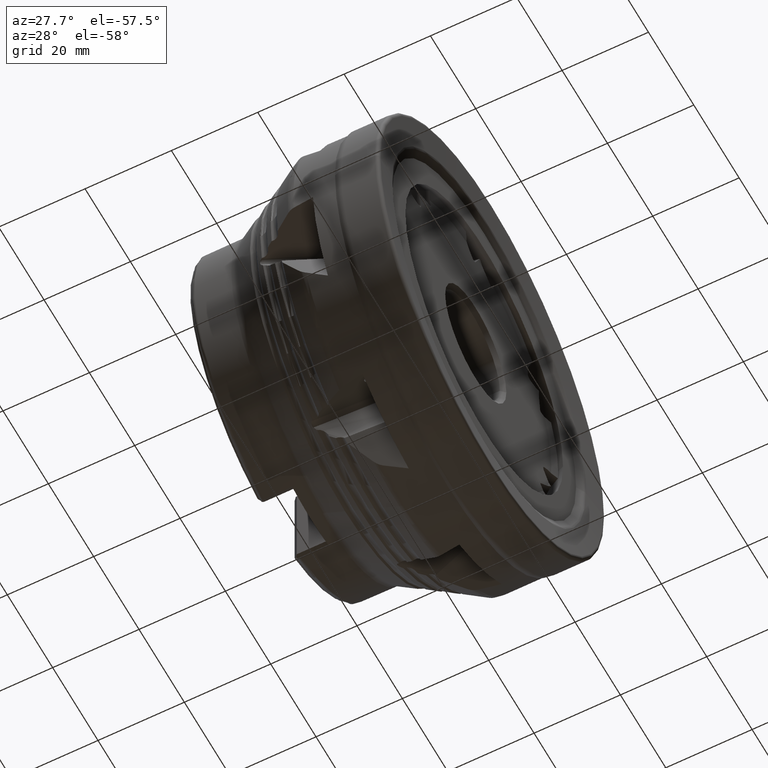
[diagram: clean part render]
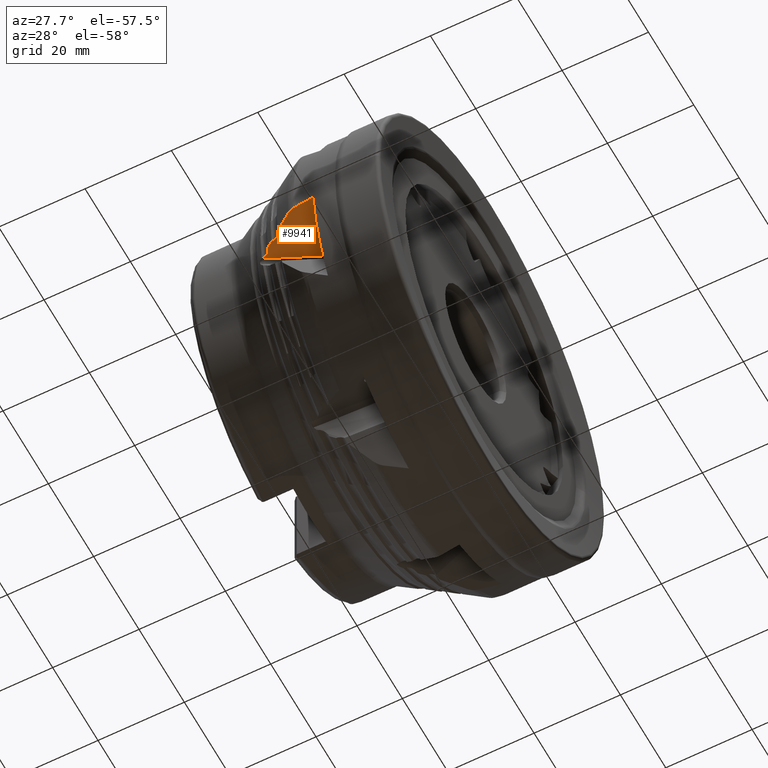
[diagram: same view with one face highlighted and labeled with its STEP entity id]
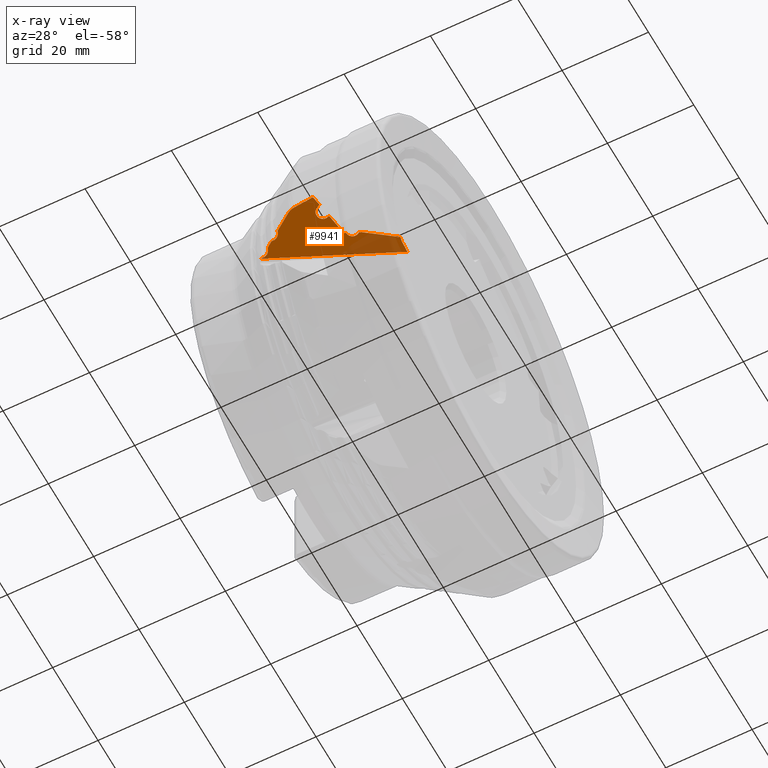
[diagram: x-ray of the same camera — body ghosted, the highlighted face saturated]
A machine part, auxiliary view. The second image highlights one B-rep face of the part: STEP entity #9941.
The next image is the same camera in x-ray: the body ghosted, the highlighted face saturated — about 20% of this face is hidden behind the body in this view.
In plain terms, the highlighted planar face has unit normal (-0.1392, 0.2204, 0.9654).
Its self-contained STEP definition (entity closure, byte-faithful):
#23 = B_SPLINE_CURVE_WITH_KNOTS ( 'NONE', 3,
 ( #2173, #2178, #2179, #2180, #2181, #2182, #2183, #2184, #2185, #2186, #2187, #2188 ),
 .UNSPECIFIED., .F., .F.,
 ( 4, 2, 2, 2, 2, 4 ),
 ( 9.759521454629765600E-007, 0.0005336591846719985300, 0.001066342417198534000, 0.001599025649725069300, 0.001865367265988338100, 0.002131708882251606800 ),
 .UNSPECIFIED. ) ;
#1583 = CIRCLE ( 'NONE', #5654, 1.499999999999990700 ) ;
#1586 = CIRCLE ( 'NONE', #5655, 1.500000000000026200 ) ;
#2173 = CARTESIAN_POINT ( 'NONE',  ( -23.45538848306713600, -46.53457036963099800, -6.311287599031854400 ) ) ;
#2178 = CARTESIAN_POINT ( 'NONE',  ( -23.49182370083072900, -46.36383818214969200, -6.355508429303624100 ) ) ;
#2179 = CARTESIAN_POINT ( 'NONE',  ( -23.55372686292649600, -46.20372986985148600, -6.400975763559364900 ) ) ;
#2180 = CARTESIAN_POINT ( 'NONE',  ( -23.72757998662828900, -45.90439011479648500, -6.494359924427234500 ) ) ;
#2181 = CARTESIAN_POINT ( 'NONE',  ( -23.83710413897812000, -45.77031779809923500, -6.540749521396782600 ) ) ;
#2182 = CARTESIAN_POINT ( 'NONE',  ( -24.09658595447035300, -45.54189465135150500, -6.630291242174431300 ) ) ;
#2183 = CARTESIAN_POINT ( 'NONE',  ( -24.24564957103257300, -45.44899003495536500, -6.672984395775482200 ) ) ;
#2184 = CARTESIAN_POINT ( 'NONE',  ( -24.48763658016121900, -45.35163775596753100, -6.730088080671151800 ) ) ;
#2185 = CARTESIAN_POINT ( 'NONE',  ( -24.57284011131132900, -45.32574449915117000, -6.748280571475609300 ) ) ;
#2186 = CARTESIAN_POINT ( 'NONE',  ( -24.74446011965249800, -45.29021380623645900, -6.781130120447621800 ) ) ;
#2187 = CARTESIAN_POINT ( 'NONE',  ( -24.83135374330198500, -45.28022020958447800, -6.795937253034770400 ) ) ;
#2188 = CARTESIAN_POINT ( 'NONE',  ( -24.91936529679546900, -45.27824443765484100, -6.809075524743327900 ) ) ;
#2885 = CARTESIAN_POINT ( 'NONE',  ( -11.66506096082480900, -39.78618330910501300, -6.151927016529003600 ) ) ;
#2952 = CARTESIAN_POINT ( 'NONE',  ( -11.24344223884060100, -39.58720115850617600, -6.136564903151402500 ) ) ;
#3085 = CARTESIAN_POINT ( 'NONE',  ( -18.25062266157716800, -49.32996094344390800, -4.922964383204377900 ) ) ;
#3086 = CARTESIAN_POINT ( 'NONE',  ( -13.78362487377383500, -49.39119345747896300, -4.265047930194281600 ) ) ;
#3136 = CARTESIAN_POINT ( 'NONE',  ( -1.836592333840959800, -33.52437599038961500, -6.164319756526992000 ) ) ;
#3140 = CARTESIAN_POINT ( 'NONE',  ( -14.04545805774751200, -47.05773585774404900, -4.835388990000996800 ) ) ;
#3141 = CARTESIAN_POINT ( 'NONE',  ( -13.33281103739229900, -47.36365814174738600, -4.662832519577575500 ) ) ;
#3207 = CARTESIAN_POINT ( 'NONE',  ( -19.75000000000000000, -48.89358564530643700, -5.238707093743789400 ) ) ;
#3208 = CARTESIAN_POINT ( 'NONE',  ( -23.36015006379808400, -46.67147608151736900, -6.266310659439891900 ) ) ;
#3209 = CARTESIAN_POINT ( 'NONE',  ( -25.36905744041486300, -45.34038037088378600, -6.859718821249764200 ) ) ;
#3210 = CARTESIAN_POINT ( 'NONE',  ( -25.52897488212560600, -45.31834952622855200, -6.887800133240063800 ) ) ;
#3211 = CARTESIAN_POINT ( 'NONE',  ( -26.76015006379809000, -44.54346804750183300, -7.242141960704758600 ) ) ;
#3212 = CARTESIAN_POINT ( 'NONE',  ( -28.76905744041485500, -43.18844555809271000, -7.841011253633356000 ) ) ;
#3213 = CARTESIAN_POINT ( 'NONE',  ( -28.92897488212557600, -43.16543595882875900, -7.869315959976119300 ) ) ;
#3214 = CARTESIAN_POINT ( 'NONE',  ( -29.02545710055478500, -43.10372445087094900, -7.897309613206875400 ) ) ;
#3215 = CARTESIAN_POINT ( 'NONE',  ( -1.999999999999994900, -30.12084443433748900, -6.964709673208115100 ) ) ;
#3216 = CARTESIAN_POINT ( 'NONE',  ( -1.999999999999994900, -32.68313135216197900, -6.379884404699383900 ) ) ;
#3409 = B_SPLINE_CURVE_WITH_KNOTS ( 'NONE', 3,
 ( #4779, #4783, #4784, #4785 ),
 .UNSPECIFIED., .F., .F.,
 ( 4, 4 ),
 ( 2.212741174222945500E-007, 0.0004666890997383329900 ),
 .UNSPECIFIED. ) ;
#3445 = B_SPLINE_CURVE_WITH_KNOTS ( 'NONE', 3,
 ( #5387, #5404, #5405, #5406 ),
 .UNSPECIFIED., .F., .F.,
 ( 4, 4 ),
 ( 0.003116354221378027500, 0.003600815436697026500 ),
 .UNSPECIFIED. ) ;
#4779 = CARTESIAN_POINT ( 'NONE',  ( -11.66506096082480900, -39.78618330910501300, -6.151927016529003600 ) ) ;
#4783 = CARTESIAN_POINT ( 'NONE',  ( -11.52452100371649600, -39.71985675625074900, -6.146806067245037800 ) ) ;
#4784 = CARTESIAN_POINT ( 'NONE',  ( -11.38398142775746200, -39.65352937696297900, -6.141685361533738800 ) ) ;
#4785 = CARTESIAN_POINT ( 'NONE',  ( -11.24344223884060100, -39.58720115850617600, -6.136564903151402500 ) ) ;
#5387 = CARTESIAN_POINT ( 'NONE',  ( -8.848577483171322200, -38.45683011471340500, -6.049332739299579500 ) ) ;
#5404 = CARTESIAN_POINT ( 'NONE',  ( -8.702621953292180000, -38.38793302215247400, -6.044017816472600800 ) ) ;
#5405 = CARTESIAN_POINT ( 'NONE',  ( -8.556666879557473800, -38.31903494077661100, -6.038703185091729400 ) ) ;
#5406 = CARTESIAN_POINT ( 'NONE',  ( -8.410712269557830500, -38.25013585418885500, -6.033388849993688300 ) ) ;
#5495 = CARTESIAN_POINT ( 'NONE',  ( -13.41605573981386000, -45.71343130562618000, -5.051486174931822500 ) ) ;
#5499 = CARTESIAN_POINT ( 'NONE',  ( -9.761393026299881400, -39.63905482240581800, -5.911084684179574100 ) ) ;
#5504 = DIRECTION ( 'NONE',  ( -0.1391731009600687400, 0.2203553755234936900, 0.9654399807585445400 ) ) ;
#5505 = DIRECTION ( 'NONE',  ( 0.0000000000000000000, -0.9749279121818227300, 0.2225209339563185300 ) ) ;
#5509 = DIRECTION ( 'NONE',  ( -0.1391731009600687400, 0.2203553755234936900, 0.9654399807585445400 ) ) ;
#5510 = DIRECTION ( 'NONE',  ( 0.0000000000000000000, -0.9749279121818227300, 0.2225209339563178900 ) ) ;
#5654 = AXIS2_PLACEMENT_3D ( 'NONE', #5499, #5504, #5505 ) ;
#5655 = AXIS2_PLACEMENT_3D ( 'NONE', #5495, #5509, #5510 ) ;
#5789 = AXIS2_PLACEMENT_3D ( 'NONE', #7998, #8001, #8002 ) ;
#5790 = AXIS2_PLACEMENT_3D ( 'NONE', #7995, #8006, #8007 ) ;
#6020 = CARTESIAN_POINT ( 'NONE',  ( -13.78362487377383500, -49.39119345747896300, -4.265047930194281600 ) ) ;
#6028 = CARTESIAN_POINT ( 'NONE',  ( -15.27587077769703900, -49.37224429740163600, -4.484487815998671000 ) ) ;
#6029 = CARTESIAN_POINT ( 'NONE',  ( -16.76489208409366000, -49.35183315722232300, -4.703796547028795200 ) ) ;
#6030 = CARTESIAN_POINT ( 'NONE',  ( -18.25062266157716800, -49.32996094344390800, -4.922964383204377900 ) ) ;
#6099 = CARTESIAN_POINT ( 'NONE',  ( -26.85538848306713400, -44.40467091612582400, -7.287550604452564000 ) ) ;
#6102 = CARTESIAN_POINT ( 'NONE',  ( -26.89166129506545000, -44.23268375869524500, -7.332034461805803500 ) ) ;
#6103 = CARTESIAN_POINT ( 'NONE',  ( -26.95319103494599100, -44.07115967714501900, -7.377771105436240300 ) ) ;
#6104 = CARTESIAN_POINT ( 'NONE',  ( -27.12593607631108100, -43.76869453204436400, -7.471708880462320400 ) ) ;
#6105 = CARTESIAN_POINT ( 'NONE',  ( -27.23506569506523400, -43.63252029678491100, -7.518521352595819000 ) ) ;
#6106 = CARTESIAN_POINT ( 'NONE',  ( -27.49360709679310600, -43.40015614842442200, -7.608827015830010000 ) ) ;
#6107 = CARTESIAN_POINT ( 'NONE',  ( -27.64295106517019100, -43.30477681821707100, -7.652125420854521700 ) ) ;
#6108 = CARTESIAN_POINT ( 'NONE',  ( -27.88523972085051000, -43.20455814086041400, -7.709926826362947200 ) ) ;
#6109 = CARTESIAN_POINT ( 'NONE',  ( -27.97069403435434200, -43.17772065225455000, -7.728370983467991500 ) ) ;
#6110 = CARTESIAN_POINT ( 'NONE',  ( -28.14344077869620300, -43.14055955205466800, -7.761755087008945800 ) ) ;
#6111 = CARTESIAN_POINT ( 'NONE',  ( -28.23086353245713200, -43.12995490189413100, -7.776777965378247600 ) ) ;
#6112 = CARTESIAN_POINT ( 'NONE',  ( -28.31936529679456500, -43.12755134890728200, -7.790084541716831600 ) ) ;
#7100 = B_SPLINE_CURVE_WITH_KNOTS ( 'NONE', 3,
 ( #6099, #6102, #6103, #6104, #6105, #6106, #6107, #6108, #6109, #6110, #6111, #6112 ),
 .UNSPECIFIED., .F., .F.,
 ( 4, 2, 2, 2, 2, 4 ),
 ( 9.870091606315240700E-007, 0.0005373037065462918900, 0.001073620403931952300, 0.001609937101317612600, 0.001878095450010446400, 0.002146253798703280000 ),
 .UNSPECIFIED. ) ;
#7230 = B_SPLINE_CURVE_WITH_KNOTS ( 'NONE', 3,
 ( #7819, #7826, #7827, #7828 ),
 .UNSPECIFIED., .F., .F.,
 ( 4, 4 ),
 ( 9.366530817214643600E-007, 0.002115730340238028900 ),
 .UNSPECIFIED. ) ;
#7233 = B_SPLINE_CURVE_WITH_KNOTS ( 'NONE', 3,
 ( #7833, #7838, #7839, #7840 ),
 .UNSPECIFIED., .F., .F.,
 ( 4, 4 ),
 ( 2.429898845570674500E-007, 0.001497504411524413300 ),
 .UNSPECIFIED. ) ;
#7234 = B_SPLINE_CURVE_WITH_KNOTS ( 'NONE', 3,
 ( #7837, #7842, #7843, #7844, #7845, #7846 ),
 .UNSPECIFIED., .F., .F.,
 ( 4, 2, 4 ),
 ( 1.991636211749637300E-007, 0.0008003718511260795800, 0.001600544538630984200 ),
 .UNSPECIFIED. ) ;
#7235 = B_SPLINE_CURVE_WITH_KNOTS ( 'NONE', 3,
 ( #7848, #7847, #7849, #7850 ),
 .UNSPECIFIED., .F., .F.,
 ( 4, 4 ),
 ( 0.005186013282721384200, 0.01001616733889537500 ),
 .UNSPECIFIED. ) ;
#7236 = B_SPLINE_CURVE_WITH_KNOTS ( 'NONE', 3,
 ( #7841, #7852, #7853, #7854 ),
 .UNSPECIFIED., .F., .F.,
 ( 4, 4 ),
 ( 2.385777895172948600E-007, 0.0001762955975940620800 ),
 .UNSPECIFIED. ) ;
#7237 = B_SPLINE_CURVE_WITH_KNOTS ( 'NONE', 3,
 ( #7851, #7856, #7857, #7858 ),
 .UNSPECIFIED., .F., .F.,
 ( 4, 4 ),
 ( 2.411101941830758300E-007, 0.004362227295965008300 ),
 .UNSPECIFIED. ) ;
#7238 = B_SPLINE_CURVE_WITH_KNOTS ( 'NONE', 3,
 ( #7855, #7860, #7861, #7862 ),
 .UNSPECIFIED., .F., .F.,
 ( 4, 4 ),
 ( 0.002131708882251606800, 0.002585426203325228200 ),
 .UNSPECIFIED. ) ;
#7239 = B_SPLINE_CURVE_WITH_KNOTS ( 'NONE', 3,
 ( #7859, #7864, #7865, #7866 ),
 .UNSPECIFIED., .F., .F.,
 ( 4, 4 ),
 ( 2.397754852480150300E-007, 0.0001778714432460009300 ),
 .UNSPECIFIED. ) ;
#7240 = B_SPLINE_CURVE_WITH_KNOTS ( 'NONE', 3,
 ( #7863, #7868, #7869, #7870 ),
 .UNSPECIFIED., .F., .F.,
 ( 4, 4 ),
 ( 2.066598229497454200E-007, 0.0001681806601848402100 ),
 .UNSPECIFIED. ) ;
#7241 = B_SPLINE_CURVE_WITH_KNOTS ( 'NONE', 3,
 ( #7867, #7872, #7873, #7874 ),
 .UNSPECIFIED., .F., .F.,
 ( 4, 4 ),
 ( 2.443785715695963800E-007, 0.0001181457765357475200 ),
 .UNSPECIFIED. ) ;
#7242 = B_SPLINE_CURVE_WITH_KNOTS ( 'NONE', 3,
 ( #7871, #7876, #7877, #7878 ),
 .UNSPECIFIED., .F., .F.,
 ( 4, 4 ),
 ( 0.002146253798703280000, 0.002599812513681059900 ),
 .UNSPECIFIED. ) ;
#7243 = B_SPLINE_CURVE_WITH_KNOTS ( 'NONE', 3,
 ( #7875, #7882, #7883, #7884 ),
 .UNSPECIFIED., .F., .F.,
 ( 4, 4 ),
 ( 2.066099482112097000E-007, 0.0001684596230543811800 ),
 .UNSPECIFIED. ) ;
#7244 = B_SPLINE_CURVE_WITH_KNOTS ( 'NONE', 3,
 ( #7881, #7889, #7890, #7891 ),
 .UNSPECIFIED., .F., .F.,
 ( 4, 4 ),
 ( 0.006491440818085810300, 0.007375101520984495400 ),
 .UNSPECIFIED. ) ;
#7819 = CARTESIAN_POINT ( 'NONE',  ( -13.78362487377383500, -49.39119345747896300, -4.265047930194281600 ) ) ;
#7826 = CARTESIAN_POINT ( 'NONE',  ( -13.63310367491940100, -48.71539433741146800, -4.397596270253261600 ) ) ;
#7827 = CARTESIAN_POINT ( 'NONE',  ( -13.48282184778624600, -48.03955117305719800, -4.530189169788691600 ) ) ;
#7828 = CARTESIAN_POINT ( 'NONE',  ( -13.33281103739229900, -47.36365814174738600, -4.662832519577575500 ) ) ;
#7833 = CARTESIAN_POINT ( 'NONE',  ( -25.52897488212560600, -45.31834952622855200, -6.887800133240063800 ) ) ;
#7837 = CARTESIAN_POINT ( 'NONE',  ( -18.25062266157716800, -49.32996094344390800, -4.922964383204377900 ) ) ;
#7838 = CARTESIAN_POINT ( 'NONE',  ( -25.93976280198796800, -45.06065025508499400, -7.005835485597873300 ) ) ;
#7839 = CARTESIAN_POINT ( 'NONE',  ( -26.35016252104690800, -44.80236655969695600, -7.123948267848516200 ) ) ;
#7840 = CARTESIAN_POINT ( 'NONE',  ( -26.76015006379809000, -44.54346804750183300, -7.242141960704758600 ) ) ;
#7841 = CARTESIAN_POINT ( 'NONE',  ( -23.36015006379808400, -46.67147608151736900, -6.266310659439891900 ) ) ;
#7842 = CARTESIAN_POINT ( 'NONE',  ( -18.51846492318371800, -49.32601789798630400, -4.962475186712317100 ) ) ;
#7843 = CARTESIAN_POINT ( 'NONE',  ( -18.77816234924813100, -49.28592089985940600, -5.009063774374710400 ) ) ;
#7844 = CARTESIAN_POINT ( 'NONE',  ( -19.28242374689349600, -49.13855130573298900, -5.115391776845230600 ) ) ;
#7845 = CARTESIAN_POINT ( 'NONE',  ( -19.52554697373380000, -49.03066228106958800, -5.175064196765203100 ) ) ;
#7846 = CARTESIAN_POINT ( 'NONE',  ( -19.75000000000000000, -48.89358564530643700, -5.238707093743789400 ) ) ;
#7847 = CARTESIAN_POINT ( 'NONE',  ( -12.34063413290073700, -42.87541999126197100, -5.544216223949814700 ) ) ;
#7848 = CARTESIAN_POINT ( 'NONE',  ( -12.68127669653380000, -44.41951283377462500, -5.240892473026296900 ) ) ;
#7849 = CARTESIAN_POINT ( 'NONE',  ( -12.00168071892306400, -41.33101634598852300, -5.847854413119782700 ) ) ;
#7850 = CARTESIAN_POINT ( 'NONE',  ( -11.66506096082480900, -39.78618330910501300, -6.151927016529003600 ) ) ;
#7851 = CARTESIAN_POINT ( 'NONE',  ( -19.75000000000000000, -48.89358564530643700, -5.238707093743789400 ) ) ;
#7852 = CARTESIAN_POINT ( 'NONE',  ( -23.40932310146964900, -46.64096022188778100, -6.280364249631813500 ) ) ;
#7853 = CARTESIAN_POINT ( 'NONE',  ( -23.44334989651387600, -46.59098211482746900, -6.296676562613600800 ) ) ;
#7854 = CARTESIAN_POINT ( 'NONE',  ( -23.45538848306713600, -46.53457036963099800, -6.311287599031854400 ) ) ;
#7855 = CARTESIAN_POINT ( 'NONE',  ( -24.91936529679546900, -45.27824443765484100, -6.809075524743327900 ) ) ;
#7856 = CARTESIAN_POINT ( 'NONE',  ( -20.95608357414482700, -48.15701335870282700, -5.580688014801217500 ) ) ;
#7857 = CARTESIAN_POINT ( 'NONE',  ( -22.15960049143722100, -47.41651450019766400, -5.923195153586070700 ) ) ;
#7858 = CARTESIAN_POINT ( 'NONE',  ( -23.36015006379808400, -46.67147608151736900, -6.266310659439891900 ) ) ;
#7859 = CARTESIAN_POINT ( 'NONE',  ( -26.76015006379809000, -44.54346804750183300, -7.242141960704758600 ) ) ;
#7860 = CARTESIAN_POINT ( 'NONE',  ( -25.06929442478891800, -45.27487867770098300, -6.831456786547571300 ) ) ;
#7861 = CARTESIAN_POINT ( 'NONE',  ( -25.22240636867503100, -45.29541670653453900, -6.848840983704330500 ) ) ;
#7862 = CARTESIAN_POINT ( 'NONE',  ( -25.36905744041486300, -45.34038037088378600, -6.859718821249764200 ) ) ;
#7863 = CARTESIAN_POINT ( 'NONE',  ( -25.36905744041486300, -45.34038037088378600, -6.859718821249764200 ) ) ;
#7864 = CARTESIAN_POINT ( 'NONE',  ( -26.80951474335352800, -44.51229529038308600, -7.256373109617649100 ) ) ;
#7865 = CARTESIAN_POINT ( 'NONE',  ( -26.84337857199202700, -44.46161578355745500, -7.272822020079626500 ) ) ;
#7866 = CARTESIAN_POINT ( 'NONE',  ( -26.85538848306713400, -44.40467091612582400, -7.287550604452564000 ) ) ;
#7867 = CARTESIAN_POINT ( 'NONE',  ( -28.92897488212557600, -43.16543595882875900, -7.869315959976119300 ) ) ;
#7868 = CARTESIAN_POINT ( 'NONE',  ( -25.42324768367252100, -45.35699526417981500, -6.863738380437038900 ) ) ;
#7869 = CARTESIAN_POINT ( 'NONE',  ( -25.48225369819399700, -45.34765909077519600, -6.874375319260212600 ) ) ;
#7870 = CARTESIAN_POINT ( 'NONE',  ( -25.52897488212560600, -45.31834952622855200, -6.887800133240063800 ) ) ;
#7871 = CARTESIAN_POINT ( 'NONE',  ( -28.31936529679456500, -43.12755134890728200, -7.790084541716831600 ) ) ;
#7872 = CARTESIAN_POINT ( 'NONE',  ( -28.96113846362657200, -43.14486965160807600, -7.878646629832097400 ) ) ;
#7873 = CARTESIAN_POINT ( 'NONE',  ( -28.99329920782777500, -43.12429915478320900, -7.887977846926646400 ) ) ;
#7874 = CARTESIAN_POINT ( 'NONE',  ( -29.02545710055478500, -43.10372445087094900, -7.897309613206875400 ) ) ;
#7875 = CARTESIAN_POINT ( 'NONE',  ( -28.76905744041485500, -43.18844555809271000, -7.841011253633356000 ) ) ;
#7876 = CARTESIAN_POINT ( 'NONE',  ( -28.46905575656330700, -43.12348601808474800, -7.812591070763940800 ) ) ;
#7877 = CARTESIAN_POINT ( 'NONE',  ( -28.62236818626109900, -43.14357480084553500, -7.830106706458265000 ) ) ;
#7878 = CARTESIAN_POINT ( 'NONE',  ( -28.76905744041485500, -43.18844555809271000, -7.841011253633356000 ) ) ;
#7879 = CARTESIAN_POINT ( 'NONE',  ( -42.74378102651051800, -49.69393133972935300, -8.370704310015437200 ) ) ;
#7880 = DIRECTION ( 'NONE',  ( 0.9009485569986041000, 0.4328107004096413100, 0.03109011503755916900 ) ) ;
#7881 = CARTESIAN_POINT ( 'NONE',  ( -1.836592333840959800, -33.52437599038961500, -6.164319756526992000 ) ) ;
#7882 = CARTESIAN_POINT ( 'NONE',  ( -28.82335080786292600, -43.20505334933712000, -7.845047299695973900 ) ) ;
#7883 = CARTESIAN_POINT ( 'NONE',  ( -28.88244513073962600, -43.19518840298480500, -7.855817657594037900 ) ) ;
#7884 = CARTESIAN_POINT ( 'NONE',  ( -28.92897488212557600, -43.16543595882875900, -7.869315959976119300 ) ) ;
#7886 = CARTESIAN_POINT ( 'NONE',  ( -2.000000000000000000, 28.64874385110148900, -20.37848469195557000 ) ) ;
#7887 = DIRECTION ( 'NONE',  ( -1.193902915776644700E-016, 0.9749279121818226200, -0.2225209339563182500 ) ) ;
#7889 = CARTESIAN_POINT ( 'NONE',  ( -1.891193054101069300, -33.24399021834261700, -6.236186951823378300 ) ) ;
#7890 = CARTESIAN_POINT ( 'NONE',  ( -1.945665366756288000, -32.96357602304370000, -6.308042123929880100 ) ) ;
#7891 = CARTESIAN_POINT ( 'NONE',  ( -1.999999999999994900, -32.68313135216197900, -6.379884404699383900 ) ) ;
#7988 = CARTESIAN_POINT ( 'NONE',  ( 4.097353782242358900, -29.25880057291342600, -6.282500889803480400 ) ) ;
#7989 = DIRECTION ( 'NONE',  ( -0.8118734434426382300, -0.5836095129115316200, 0.01616936213206922700 ) ) ;
#7995 = CARTESIAN_POINT ( 'NONE',  ( -9.761393026299881400, -39.63905482240581800, -5.911084684179574100 ) ) ;
#7998 = CARTESIAN_POINT ( 'NONE',  ( -13.41605573981386000, -45.71343130562618000, -5.051486174931822500 ) ) ;
#8001 = DIRECTION ( 'NONE',  ( -0.1391731009600687400, 0.2203553755234936900, 0.9654399807585445400 ) ) ;
#8002 = DIRECTION ( 'NONE',  ( 0.0000000000000000000, -0.9749279121818227300, 0.2225209339563178900 ) ) ;
#8003 = CARTESIAN_POINT ( 'NONE',  ( -9.001181224962378400, -49.22312299296499600, -3.613995254754385200 ) ) ;
#8004 = DIRECTION ( 'NONE',  ( 0.8969756915101828600, -0.3850501642531066200, 0.2171888115177320600 ) ) ;
#8006 = DIRECTION ( 'NONE',  ( -0.1391731009600687400, 0.2203553755234936900, 0.9654399807585445400 ) ) ;
#8007 = DIRECTION ( 'NONE',  ( 0.0000000000000000000, -0.9749279121818227300, 0.2225209339563185300 ) ) ;
#8300 = LINE ( 'NONE', #7879, #8301 ) ;
#8301 = VECTOR ( 'NONE', #7880, 1000.000000000000200 ) ;
#8302 = LINE ( 'NONE', #7886, #8303 ) ;
#8303 = VECTOR ( 'NONE', #7887, 1000.000000000000200 ) ;
#8307 = VECTOR ( 'NONE', #7989, 1000.000000000000100 ) ;
#8318 = LINE ( 'NONE', #8003, #8322 ) ;
#8319 = LINE ( 'NONE', #7988, #8307 ) ;
#8322 = VECTOR ( 'NONE', #8004, 1000.000000000000000 ) ;
#8328 = CIRCLE ( 'NONE', #5789, 1.500000000000026200 ) ;
#8331 = CIRCLE ( 'NONE', #5790, 1.499999999999990700 ) ;
#9571 = VERTEX_POINT ( 'NONE', #15551 ) ;
#9598 = VERTEX_POINT ( 'NONE', #15578 ) ;
#9617 = VERTEX_POINT ( 'NONE', #15597 ) ;
#9624 = VERTEX_POINT ( 'NONE', #15604 ) ;
#9634 = VERTEX_POINT ( 'NONE', #15614 ) ;
#9652 = VERTEX_POINT ( 'NONE', #15632 ) ;
#9769 = VERTEX_POINT ( 'NONE', #15749 ) ;
#9770 = VERTEX_POINT ( 'NONE', #15750 ) ;
#9771 = VERTEX_POINT ( 'NONE', #15751 ) ;
#9941 = ADVANCED_FACE ( 'NONE', ( #14413 ), #16181, .F. ) ;
#10471 = EDGE_CURVE ( 'NONE', #9652, #9634, #23, .T. ) ;
#10669 = VERTEX_POINT ( 'NONE', #2885 ) ;
#10736 = VERTEX_POINT ( 'NONE', #2952 ) ;
#10869 = VERTEX_POINT ( 'NONE', #3085 ) ;
#10870 = VERTEX_POINT ( 'NONE', #3086 ) ;
#10920 = VERTEX_POINT ( 'NONE', #3136 ) ;
#10924 = VERTEX_POINT ( 'NONE', #3140 ) ;
#10925 = VERTEX_POINT ( 'NONE', #3141 ) ;
#10991 = VERTEX_POINT ( 'NONE', #3207 ) ;
#10992 = VERTEX_POINT ( 'NONE', #3208 ) ;
#10993 = VERTEX_POINT ( 'NONE', #3209 ) ;
#10994 = VERTEX_POINT ( 'NONE', #3210 ) ;
#10995 = VERTEX_POINT ( 'NONE', #3211 ) ;
#10996 = VERTEX_POINT ( 'NONE', #3212 ) ;
#10997 = VERTEX_POINT ( 'NONE', #3213 ) ;
#10998 = VERTEX_POINT ( 'NONE', #3214 ) ;
#10999 = VERTEX_POINT ( 'NONE', #3215 ) ;
#11000 = VERTEX_POINT ( 'NONE', #3216 ) ;
#11509 = ORIENTED_EDGE ( 'NONE', *, *, #13124, .F. ) ;
#11510 = ORIENTED_EDGE ( 'NONE', *, *, #13155, .T. ) ;
#11511 = ORIENTED_EDGE ( 'NONE', *, *, #14947, .T. ) ;
#11512 = ORIENTED_EDGE ( 'NONE', *, *, #13018, .F. ) ;
#11513 = ORIENTED_EDGE ( 'NONE', *, *, #14902, .F. ) ;
#11514 = ORIENTED_EDGE ( 'NONE', *, *, #13157, .T. ) ;
#11515 = ORIENTED_EDGE ( 'NONE', *, *, #14945, .T. ) ;
#11516 = ORIENTED_EDGE ( 'NONE', *, *, #14946, .T. ) ;
#11517 = ORIENTED_EDGE ( 'NONE', *, *, #13639, .F. ) ;
#11518 = ORIENTED_EDGE ( 'NONE', *, *, #13251, .T. ) ;
#11519 = ORIENTED_EDGE ( 'NONE', *, *, #13643, .T. ) ;
#11520 = ORIENTED_EDGE ( 'NONE', *, *, #14904, .T. ) ;
#11521 = ORIENTED_EDGE ( 'NONE', *, *, #14903, .T. ) ;
#11522 = ORIENTED_EDGE ( 'NONE', *, *, #10471, .T. ) ;
#11523 = ORIENTED_EDGE ( 'NONE', *, *, #14905, .T. ) ;
#11524 = ORIENTED_EDGE ( 'NONE', *, *, #14907, .T. ) ;
#11525 = ORIENTED_EDGE ( 'NONE', *, *, #13642, .T. ) ;
#11526 = ORIENTED_EDGE ( 'NONE', *, *, #14906, .T. ) ;
#11527 = ORIENTED_EDGE ( 'NONE', *, *, #13272, .T. ) ;
#11528 = ORIENTED_EDGE ( 'NONE', *, *, #14909, .T. ) ;
#11529 = ORIENTED_EDGE ( 'NONE', *, *, #14911, .T. ) ;
#11530 = ORIENTED_EDGE ( 'NONE', *, *, #14908, .T. ) ;
#11531 = ORIENTED_EDGE ( 'NONE', *, *, #14910, .T. ) ;
#11532 = ORIENTED_EDGE ( 'NONE', *, *, #14912, .F. ) ;
#11533 = ORIENTED_EDGE ( 'NONE', *, *, #14913, .F. ) ;
#11534 = ORIENTED_EDGE ( 'NONE', *, *, #14941, .T. ) ;
#13018 = EDGE_CURVE ( 'NONE', #10669, #10736, #3409, .T. ) ;
#13124 = EDGE_CURVE ( 'NONE', #9571, #9598, #3445, .T. ) ;
#13155 = EDGE_CURVE ( 'NONE', #9571, #9769, #1583, .T. ) ;
#13157 = EDGE_CURVE ( 'NONE', #9770, #9771, #1586, .T. ) ;
#13251 = EDGE_CURVE ( 'NONE', #10870, #10869, #15163, .T. ) ;
#13272 = EDGE_CURVE ( 'NONE', #9617, #9624, #7100, .T. ) ;
#13639 = EDGE_CURVE ( 'NONE', #10870, #10925, #7230, .T. ) ;
#13642 = EDGE_CURVE ( 'NONE', #10994, #10995, #7233, .T. ) ;
#13643 = EDGE_CURVE ( 'NONE', #10869, #10991, #7234, .T. ) ;
#14163 = EDGE_LOOP ( 'NONE', ( #11509, #11510, #11511, #11512, #11513, #11514, #11515, #11516, #11517, #11518, #11519, #11520, #11521, #11522, #11523, #11524, #11525, #11526, #11527, #11528, #11529, #11530, #11531, #11532, #11533, #11534 ) ) ;
#14413 = FACE_OUTER_BOUND ( 'NONE', #14163, .T. ) ;
#14902 = EDGE_CURVE ( 'NONE', #9770, #10669, #7235, .T. ) ;
#14903 = EDGE_CURVE ( 'NONE', #10992, #9652, #7236, .T. ) ;
#14904 = EDGE_CURVE ( 'NONE', #10991, #10992, #7237, .T. ) ;
#14905 = EDGE_CURVE ( 'NONE', #9634, #10993, #7238, .T. ) ;
#14906 = EDGE_CURVE ( 'NONE', #10995, #9617, #7239, .T. ) ;
#14907 = EDGE_CURVE ( 'NONE', #10993, #10994, #7240, .T. ) ;
#14908 = EDGE_CURVE ( 'NONE', #10997, #10998, #7241, .T. ) ;
#14909 = EDGE_CURVE ( 'NONE', #9624, #10996, #7242, .T. ) ;
#14910 = EDGE_CURVE ( 'NONE', #10998, #10999, #8300, .T. ) ;
#14911 = EDGE_CURVE ( 'NONE', #10996, #10997, #7243, .T. ) ;
#14912 = EDGE_CURVE ( 'NONE', #11000, #10999, #8302, .T. ) ;
#14913 = EDGE_CURVE ( 'NONE', #10920, #11000, #7244, .T. ) ;
#14941 = EDGE_CURVE ( 'NONE', #10920, #9598, #8319, .T. ) ;
#14945 = EDGE_CURVE ( 'NONE', #9771, #10924, #8328, .T. ) ;
#14946 = EDGE_CURVE ( 'NONE', #10924, #10925, #8318, .T. ) ;
#14947 = EDGE_CURVE ( 'NONE', #9769, #10736, #8331, .T. ) ;
#15163 =( BOUNDED_CURVE ( )  B_SPLINE_CURVE ( 3, ( #6020, #6028, #6029, #6030 ),
 .UNSPECIFIED., .F., .T. ) 
 B_SPLINE_CURVE_WITH_KNOTS ( ( 4, 4 ),
 ( 1.881334518253373800, 1.894663104552901200 ),
 .UNSPECIFIED. ) 
 CURVE ( )  GEOMETRIC_REPRESENTATION_ITEM ( )  RATIONAL_B_SPLINE_CURVE ( ( 1.000000000000000000, 0.9999851957870628000, 0.9999851957870628000, 1.000000000000000000 ) ) 
 REPRESENTATION_ITEM ( '' )  );
#15551 = CARTESIAN_POINT ( 'NONE',  ( -8.848577483171322200, -38.45683011471340500, -6.049332739299579500 ) ) ;
#15578 = CARTESIAN_POINT ( 'NONE',  ( -8.410712269557830500, -38.25013585418885500, -6.033388849993688300 ) ) ;
#15597 = CARTESIAN_POINT ( 'NONE',  ( -26.85538848306713400, -44.40467091612582400, -7.287550604452564000 ) ) ;
#15604 = CARTESIAN_POINT ( 'NONE',  ( -28.31936529679456500, -43.12755134890728200, -7.790084541716831600 ) ) ;
#15614 = CARTESIAN_POINT ( 'NONE',  ( -24.91936529679546900, -45.27824443765484100, -6.809075524743327900 ) ) ;
#15632 = CARTESIAN_POINT ( 'NONE',  ( -23.45538848306713600, -46.53457036963099800, -6.311287599031854400 ) ) ;
#15749 = CARTESIAN_POINT ( 'NONE',  ( -9.761393026299881400, -38.17666295413309300, -6.244866085114049200 ) ) ;
#15750 = CARTESIAN_POINT ( 'NONE',  ( -12.68127669653380000, -44.41951283377462500, -5.240892473026296900 ) ) ;
#15751 = CARTESIAN_POINT ( 'NONE',  ( -13.41605573981386000, -44.25103943735342700, -5.385267575866306400 ) ) ;
#16181 = PLANE ( 'NONE',  #16231 ) ;
#16184 = CARTESIAN_POINT ( 'NONE',  ( -44.77039534191266800, -33.58779561994263200, -12.33897148337240600 ) ) ;
#16190 = DIRECTION ( 'NONE',  ( -0.1391731009600687100, 0.2203553755234936900, 0.9654399807585444200 ) ) ;
#16191 = DIRECTION ( 'NONE',  ( 0.0000000000000000000, -0.9749279121818227300, 0.2225209339563182200 ) ) ;
#16231 = AXIS2_PLACEMENT_3D ( 'NONE', #16184, #16190, #16191 ) ;